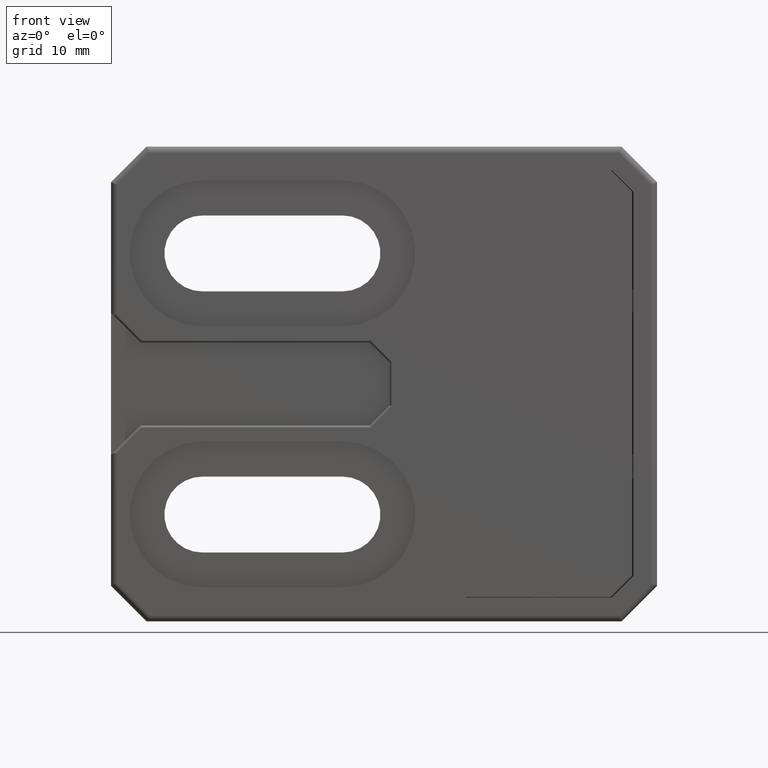
[diagram: clean part render]
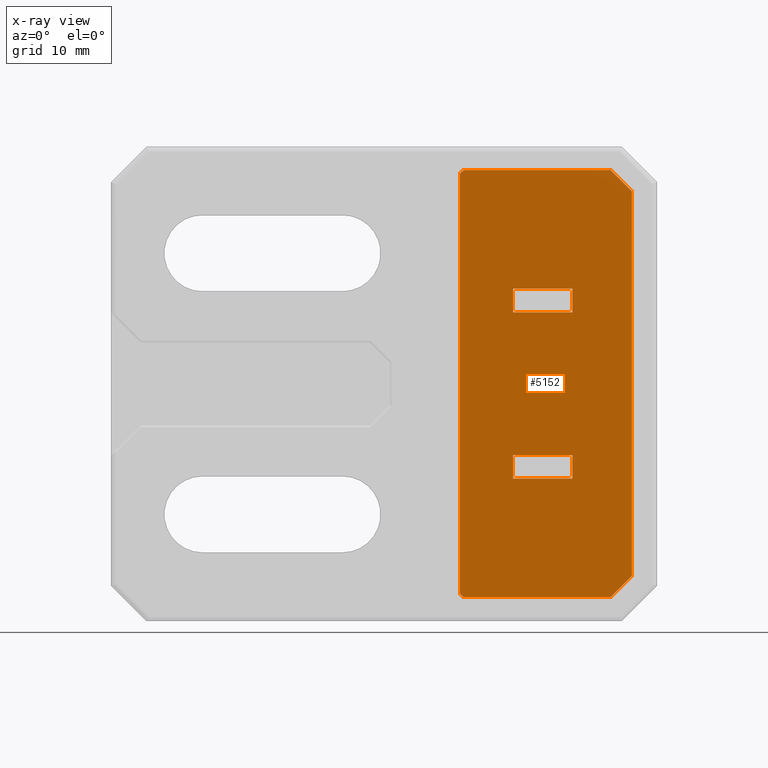
[diagram: x-ray — body ghosted, one internal face saturated and labeled with its STEP entity id]
A machine part, front view, then the same camera in x-ray: the body is ghosted and one INTERNAL B-rep face — a face not visible from any outside direction — is saturated and labeled: STEP entity #5152.
In plain terms, the highlighted planar face has unit normal (0, -1, -0).
Its self-contained STEP definition (entity closure, byte-faithful):
#79=FACE_BOUND('',#2122,.T.);
#80=FACE_BOUND('',#2123,.T.);
#430=PLANE('',#5479);
#906=LINE('',#8995,#1423);
#910=LINE('',#9002,#1427);
#913=LINE('',#9008,#1430);
#915=LINE('',#9011,#1432);
#918=LINE('',#9020,#1435);
#922=LINE('',#9027,#1439);
#925=LINE('',#9033,#1442);
#927=LINE('',#9036,#1444);
#930=LINE('',#9045,#1447);
#934=LINE('',#9052,#1451);
#937=LINE('',#9058,#1454);
#941=LINE('',#9070,#1458);
#945=LINE('',#9082,#1462);
#947=LINE('',#9085,#1464);
#1423=VECTOR('',#6561,2.);
#1427=VECTOR('',#6567,5.);
#1430=VECTOR('',#6572,2.);
#1432=VECTOR('',#6576,5.);
#1435=VECTOR('',#6583,2.);
#1439=VECTOR('',#6589,5.);
#1442=VECTOR('',#6594,2.);
#1444=VECTOR('',#6598,5.);
#1447=VECTOR('',#6605,32.4);
#1451=VECTOR('',#6611,2.54558441227157);
#1454=VECTOR('',#6616,12.2);
#1458=VECTOR('',#6628,35.);
#1462=VECTOR('',#6640,12.2);
#1464=VECTOR('',#6644,2.54558441227157);
#1816=FACE_OUTER_BOUND('',#2121,.T.);
#2121=EDGE_LOOP('',(#4841,#4842,#4843,#4844,#4845,#4846,#4847,#4848));
#2122=EDGE_LOOP('',(#4849,#4850,#4851,#4852));
#2123=EDGE_LOOP('',(#4853,#4854,#4855,#4856));
#2181=CIRCLE('',#5471,0.5);
#2183=CIRCLE('',#5475,0.500000000000003);
#2622=VERTEX_POINT('',#8992);
#2623=VERTEX_POINT('',#8994);
#2625=VERTEX_POINT('',#9000);
#2627=VERTEX_POINT('',#9006);
#2630=VERTEX_POINT('',#9017);
#2631=VERTEX_POINT('',#9019);
#2633=VERTEX_POINT('',#9025);
#2635=VERTEX_POINT('',#9031);
#2638=VERTEX_POINT('',#9042);
#2639=VERTEX_POINT('',#9044);
#2641=VERTEX_POINT('',#9050);
#2643=VERTEX_POINT('',#9056);
#2645=VERTEX_POINT('',#9062);
#2647=VERTEX_POINT('',#9068);
#2649=VERTEX_POINT('',#9074);
#2651=VERTEX_POINT('',#9080);
#3341=EDGE_CURVE('',#2623,#2622,#906,.T.);
#3345=EDGE_CURVE('',#2622,#2625,#910,.T.);
#3348=EDGE_CURVE('',#2625,#2627,#913,.T.);
#3350=EDGE_CURVE('',#2627,#2623,#915,.T.);
#3353=EDGE_CURVE('',#2631,#2630,#918,.T.);
#3357=EDGE_CURVE('',#2630,#2633,#922,.T.);
#3360=EDGE_CURVE('',#2633,#2635,#925,.T.);
#3362=EDGE_CURVE('',#2635,#2631,#927,.T.);
#3365=EDGE_CURVE('',#2639,#2638,#930,.T.);
#3369=EDGE_CURVE('',#2638,#2641,#934,.T.);
#3372=EDGE_CURVE('',#2641,#2643,#937,.T.);
#3375=EDGE_CURVE('',#2643,#2645,#2181,.T.);
#3378=EDGE_CURVE('',#2645,#2647,#941,.T.);
#3381=EDGE_CURVE('',#2647,#2649,#2183,.T.);
#3384=EDGE_CURVE('',#2649,#2651,#945,.T.);
#3386=EDGE_CURVE('',#2651,#2639,#947,.T.);
#4841=ORIENTED_EDGE('',*,*,#3386,.T.);
#4842=ORIENTED_EDGE('',*,*,#3365,.T.);
#4843=ORIENTED_EDGE('',*,*,#3369,.T.);
#4844=ORIENTED_EDGE('',*,*,#3372,.T.);
#4845=ORIENTED_EDGE('',*,*,#3375,.T.);
#4846=ORIENTED_EDGE('',*,*,#3378,.T.);
#4847=ORIENTED_EDGE('',*,*,#3381,.T.);
#4848=ORIENTED_EDGE('',*,*,#3384,.T.);
#4849=ORIENTED_EDGE('',*,*,#3341,.T.);
#4850=ORIENTED_EDGE('',*,*,#3345,.T.);
#4851=ORIENTED_EDGE('',*,*,#3348,.T.);
#4852=ORIENTED_EDGE('',*,*,#3350,.T.);
#4853=ORIENTED_EDGE('',*,*,#3353,.T.);
#4854=ORIENTED_EDGE('',*,*,#3357,.T.);
#4855=ORIENTED_EDGE('',*,*,#3360,.T.);
#4856=ORIENTED_EDGE('',*,*,#3362,.T.);
#5152=ADVANCED_FACE('',(#1816,#79,#80),#430,.F.);
#5471=AXIS2_PLACEMENT_3D('',#9064,#6622,#6623);
#5475=AXIS2_PLACEMENT_3D('',#9076,#6634,#6635);
#5479=AXIS2_PLACEMENT_3D('',#9087,#6647,#6648);
#6561=DIRECTION('',(0.,-1.,0.));
#6567=DIRECTION('',(1.,-2.22044604925031E-16,0.));
#6572=DIRECTION('',(0.,1.,0.));
#6576=DIRECTION('',(-1.,0.,0.));
#6583=DIRECTION('',(0.,-1.,0.));
#6589=DIRECTION('',(1.,-2.22044604925031E-16,0.));
#6594=DIRECTION('',(0.,1.,0.));
#6598=DIRECTION('',(-1.,0.,0.));
#6605=DIRECTION('',(6.85322854706887E-16,-1.,0.));
#6611=DIRECTION('',(-0.707106781186548,-0.707106781186548,0.));
#6616=DIRECTION('',(-1.,-9.1001887264357E-16,0.));
#6622=DIRECTION('center_axis',(0.,0.,-1.));
#6623=DIRECTION('ref_axis',(1.,0.,0.));
#6628=DIRECTION('',(-3.04363299867923E-16,1.,0.));
#6634=DIRECTION('center_axis',(0.,0.,-1.));
#6635=DIRECTION('ref_axis',(0.,-1.,0.));
#6640=DIRECTION('',(1.,9.1001887264357E-16,0.));
#6644=DIRECTION('',(0.707106781186543,-0.707106781186552,0.));
#6647=DIRECTION('center_axis',(0.,0.,1.));
#6648=DIRECTION('ref_axis',(1.,0.,0.));
#8992=CARTESIAN_POINT('',(4.50000000000001,6.,0.));
#8994=CARTESIAN_POINT('',(4.50000000000001,8.,0.));
#8995=CARTESIAN_POINT('',(4.50000000000001,4.,-2.16840434497101E-18));
#9000=CARTESIAN_POINT('',(9.50000000000001,6.,0.));
#9002=CARTESIAN_POINT('',(5.80658138010872,6.,0.));
#9006=CARTESIAN_POINT('',(9.50000000000001,8.,0.));
#9008=CARTESIAN_POINT('',(9.50000000000001,3.,0.));
#9011=CARTESIAN_POINT('',(8.30658138010872,8.,-8.67361737988404E-18));
#9017=CARTESIAN_POINT('',(4.50000000000001,-8.,0.));
#9019=CARTESIAN_POINT('',(4.50000000000001,-6.,0.));
#9020=CARTESIAN_POINT('',(4.50000000000001,-3.,-2.16840434497101E-18));
#9025=CARTESIAN_POINT('',(9.50000000000001,-8.,0.));
#9027=CARTESIAN_POINT('',(5.80658138010871,-8.,-8.67361737988404E-18));
#9031=CARTESIAN_POINT('',(9.50000000000001,-6.,0.));
#9033=CARTESIAN_POINT('',(9.50000000000001,-4.,0.));
#9036=CARTESIAN_POINT('',(8.30658138010871,-6.,0.));
#9042=CARTESIAN_POINT('',(14.5,-16.2,0.));
#9044=CARTESIAN_POINT('',(14.5,16.2,0.));
#9045=CARTESIAN_POINT('',(14.5,16.2,0.));
#9050=CARTESIAN_POINT('',(12.7,-18.,0.));
#9052=CARTESIAN_POINT('',(14.5,-16.2,0.));
#9056=CARTESIAN_POINT('',(0.500000000000007,-18.,0.));
#9058=CARTESIAN_POINT('',(12.7,-18.,0.));
#9062=CARTESIAN_POINT('',(6.45317133063372E-15,-17.5,0.));
#9064=CARTESIAN_POINT('Origin',(0.500000000000007,-17.5,0.));
#9068=CARTESIAN_POINT('',(-4.1995441647436E-15,17.5,0.));
#9070=CARTESIAN_POINT('',(6.45317133063372E-15,-17.5,0.));
#9074=CARTESIAN_POINT('',(0.499999999999996,18.,0.));
#9076=CARTESIAN_POINT('Origin',(0.499999999999996,17.5,0.));
#9080=CARTESIAN_POINT('',(12.7,18.,0.));
#9082=CARTESIAN_POINT('',(0.499999999999996,18.,0.));
#9085=CARTESIAN_POINT('',(12.7,18.,0.));
#9087=CARTESIAN_POINT('Origin',(7.11316276021742,3.60822483003176E-15,0.));